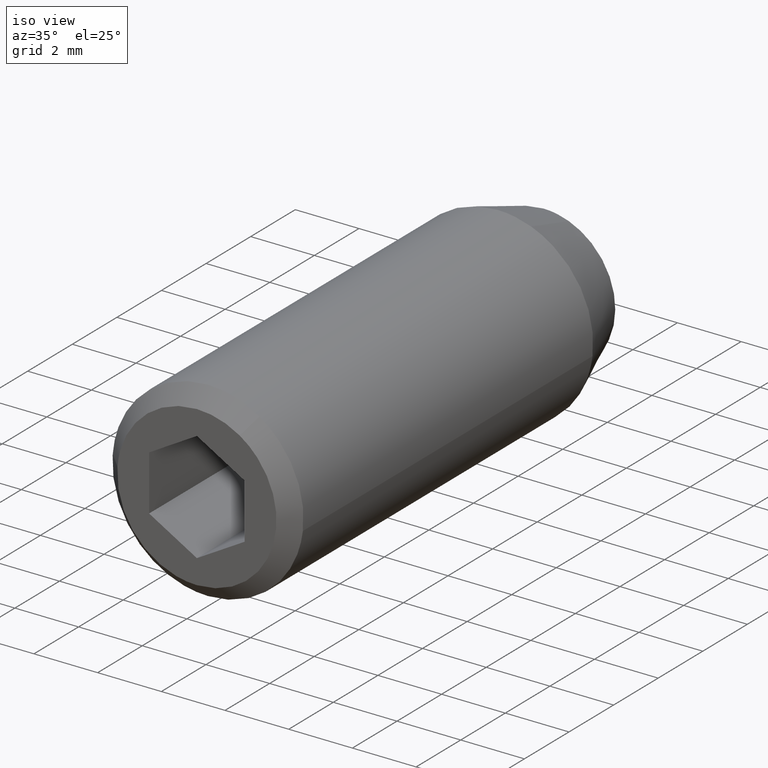
[diagram: clean part render]
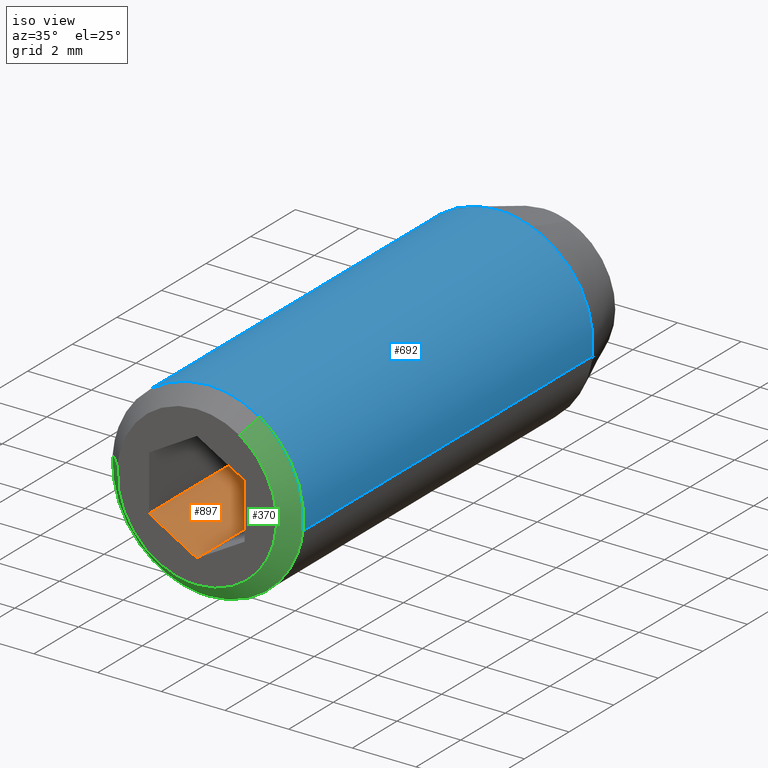
[diagram: same view with three faces highlighted in distinct colors, each labeled with its STEP entity id]
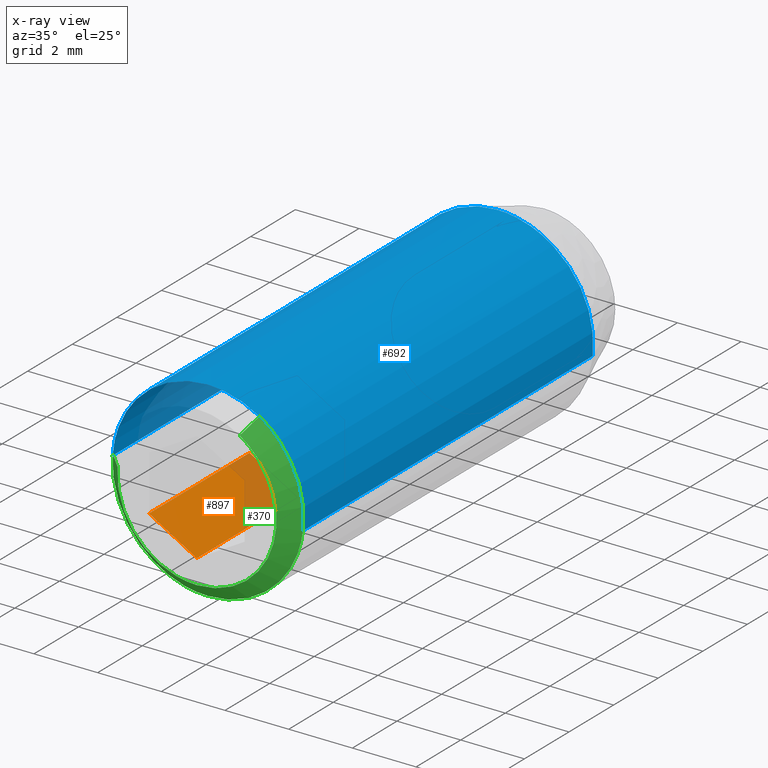
[diagram: x-ray of the same camera — body ghosted, the three highlighted faces saturated]
A machine part, iso view with three faces highlighted in distinct colors.
The next image is the same camera in x-ray (body ghosted, the three faces saturated) — at least one of them is partly hidden behind the body in this view.
Their STEP definitions:

[orange] entity #897 — the highlighted face is a freeform B-spline surface patch.
#739=CARTESIAN_POINT('',(-1.500000000000000,-11.050000000000001,-0.866025000000000));
#740=VERTEX_POINT('',#739);
#746=CARTESIAN_POINT('',(0.0,-11.050000000000001,-1.732051000000000));
#747=VERTEX_POINT('',#746);
#748=CARTESIAN_POINT('',(-1.500000000000000,-11.050000000000001,-0.866025000000000));
#749=CARTESIAN_POINT('',(0.0,-11.050000000000001,-1.732051000000000));
#750=QUASI_UNIFORM_CURVE('',1,(#748,#749),.UNSPECIFIED.,.F.,.U.);
#751=EDGE_CURVE('',#740,#747,#750,.T.);
#859=CARTESIAN_POINT('',(0.0,-15.550000000000001,-1.732051000000000));
#860=VERTEX_POINT('',#859);
#868=CARTESIAN_POINT('',(0.0,-11.050000000000001,-1.732051000000000));
#869=CARTESIAN_POINT('',(0.0,-15.550000000000001,-1.732051000000000));
#870=QUASI_UNIFORM_CURVE('',1,(#868,#869),.UNSPECIFIED.,.F.,.U.);
#871=EDGE_CURVE('',#747,#860,#870,.T.);
#876=CARTESIAN_POINT('',(0.074925011173640,-15.774775186414869,-1.775309005151099));
#877=CARTESIAN_POINT('',(-1.574925037995726,-15.774775186414869,-0.822766979363143));
#878=CARTESIAN_POINT('',(0.074925011173640,-10.825225215916490,-1.775309005151099));
#879=CARTESIAN_POINT('',(-1.574925037995726,-10.825225215916490,-0.822766979363143));
#880=B_SPLINE_SURFACE_WITH_KNOTS('',1,1,((#876,#878),(#877,#879)),.UNSPECIFIED.,.F.,.F.,.U.,(2,2),(2,2),(0.0,1.905083067909739),(0.0,4.949549970498381),.UNSPECIFIED.);
#881=CARTESIAN_POINT('',(-1.500000000000000,-15.550000000000001,-0.866025000000000));
#882=VERTEX_POINT('',#881);
#883=CARTESIAN_POINT('',(-1.500000000000000,-15.550000000000001,-0.866025000000000));
#884=CARTESIAN_POINT('',(0.0,-15.550000000000001,-1.732051000000000));
#885=QUASI_UNIFORM_CURVE('',1,(#883,#884),.UNSPECIFIED.,.F.,.U.);
#886=EDGE_CURVE('',#882,#860,#885,.T.);
#887=ORIENTED_EDGE('',*,*,#886,.T.);
#888=ORIENTED_EDGE('',*,*,#871,.F.);
#889=ORIENTED_EDGE('',*,*,#751,.F.);
#890=CARTESIAN_POINT('',(-1.500000000000000,-11.050000000000001,-0.866025000000000));
#891=CARTESIAN_POINT('',(-1.500000000000000,-15.550000000000001,-0.866025000000000));
#892=QUASI_UNIFORM_CURVE('',1,(#890,#891),.UNSPECIFIED.,.F.,.U.);
#893=EDGE_CURVE('',#740,#882,#892,.T.);
#894=ORIENTED_EDGE('',*,*,#893,.T.);
#895=EDGE_LOOP('',(#887,#888,#889,#894));
#896=FACE_OUTER_BOUND('',#895,.T.);
#897=ADVANCED_FACE('',(#896),#880,.F.);

[blue] entity #692 — the highlighted face is a freeform B-spline surface patch.
#256=CARTESIAN_POINT('',(2.979028827039997,-15.050000000000001,-0.354100617989129));
#257=VERTEX_POINT('',#256);
#258=CARTESIAN_POINT('',(1.613552380348581,-15.049999999999390,2.529120146587553));
#259=VERTEX_POINT('',#258);
#260=CARTESIAN_POINT('',(2.979028827039997,-15.050000000000002,-0.354100617989129));
#261=CARTESIAN_POINT('',(3.000000000000000,-15.049999999999997,-0.177671304938903));
#262=CARTESIAN_POINT('',(3.0,-15.050000000000001,-6.765950E-016));
#263=CARTESIAN_POINT('',(3.000000000000000,-15.050000000000006,1.644580968029252));
#264=CARTESIAN_POINT('',(1.613552380348581,-15.049999999999393,2.529120146587553));
#272=(BOUNDED_CURVE()B_SPLINE_CURVE(2,(#260,#261,#262,#263,#264),.UNSPECIFIED.,.F.,.U.)B_SPLINE_CURVE_WITH_KNOTS((3,2,3),(0.229562591855431,0.250000000000000,0.407950112626405),.UNSPECIFIED.)CURVE()GEOMETRIC_REPRESENTATION_ITEM()RATIONAL_B_SPLINE_CURVE((0.956026986138842,0.976056086977332,1.0,0.814949932403620,0.863729296954216))REPRESENTATION_ITEM(''));
#273=EDGE_CURVE('',#257,#259,#272,.T.);
#316=CARTESIAN_POINT('',(-2.990751486467367,-15.050000547912260,0.235376844060400));
#317=VERTEX_POINT('',#316);
#323=CARTESIAN_POINT('',(-2.994404631648551,-15.049999999999990,0.183141753695629));
#324=VERTEX_POINT('',#323);
#325=CARTESIAN_POINT('',(-2.990751486467367,-15.050000547912251,0.235376844060400));
#326=CARTESIAN_POINT('',(-2.992806284083604,-15.049999999999999,0.209275058976257));
#327=CARTESIAN_POINT('',(-2.994404631648550,-15.049999999999997,0.183141753695629));
#335=(BOUNDED_CURVE()B_SPLINE_CURVE(2,(#325,#326,#327),.UNSPECIFIED.,.F.,.U.)B_SPLINE_CURVE_WITH_KNOTS((3,3),(0.736331346502731,0.739333184949944),.UNSPECIFIED.)CURVE()GEOMETRIC_REPRESENTATION_ITEM()RATIONAL_B_SPLINE_CURVE((0.969723451898952,0.972855757106757,0.976072518979253))REPRESENTATION_ITEM(''));
#336=EDGE_CURVE('',#317,#324,#335,.T.);
#389=CARTESIAN_POINT('',(0.0,-15.050000000000001,2.999999999999999));
#390=VERTEX_POINT('',#389);
#391=CARTESIAN_POINT('',(1.613552380348582,-15.049999999999390,2.529120146587553));
#392=CARTESIAN_POINT('',(0.875484166150211,-15.050000000000001,3.000000000000000));
#393=CARTESIAN_POINT('',(0.0,-15.050000000000001,2.999999999999999));
#401=(BOUNDED_CURVE()B_SPLINE_CURVE(2,(#391,#392,#393),.UNSPECIFIED.,.F.,.U.)B_SPLINE_CURVE_WITH_KNOTS((3,3),(0.407950112626405,0.500000000000000),.UNSPECIFIED.)CURVE()GEOMETRIC_REPRESENTATION_ITEM()RATIONAL_B_SPLINE_CURVE((0.863729296954217,0.892156848782928,1.0))REPRESENTATION_ITEM(''));
#402=EDGE_CURVE('',#259,#390,#401,.T.);
#404=CARTESIAN_POINT('',(0.0,-15.050000000000001,2.999999999999999));
#405=CARTESIAN_POINT('',(-2.773172219317691,-15.049999999999995,2.999999999999999));
#406=CARTESIAN_POINT('',(-2.990751486467367,-15.050000547912258,0.235376844060400));
#414=(BOUNDED_CURVE()B_SPLINE_CURVE(2,(#404,#405,#406),.UNSPECIFIED.,.F.,.U.)B_SPLINE_CURVE_WITH_KNOTS((3,3),(0.500000000000000,0.736331346502732),.UNSPECIFIED.)CURVE()GEOMETRIC_REPRESENTATION_ITEM()RATIONAL_B_SPLINE_CURVE((1.0,0.723120604865190,0.969723451898952))REPRESENTATION_ITEM(''));
#415=EDGE_CURVE('',#390,#317,#414,.T.);
#468=CARTESIAN_POINT('',(1.054853923181420,-2.060608000001297,2.808430736327957));
#469=VERTEX_POINT('',#468);
#470=CARTESIAN_POINT('',(0.0,-2.060608000000000,2.999999999999999));
#471=VERTEX_POINT('',#470);
#472=CARTESIAN_POINT('',(1.054853923181420,-2.060608000001297,2.808430736327958));
#473=CARTESIAN_POINT('',(0.544822158207495,-2.060608000000000,2.999999999999999));
#474=CARTESIAN_POINT('',(0.0,-2.060608000000000,2.999999999999999));
#482=(BOUNDED_CURVE()B_SPLINE_CURVE(2,(#472,#473,#474),.UNSPECIFIED.,.F.,.U.)B_SPLINE_CURVE_WITH_KNOTS((3,3),(0.440284170898174,0.500000000000000),.UNSPECIFIED.)CURVE()GEOMETRIC_REPRESENTATION_ITEM()RATIONAL_B_SPLINE_CURVE((0.893499554634866,0.930038554401009,1.0))REPRESENTATION_ITEM(''));
#483=EDGE_CURVE('',#469,#471,#482,.T.);
#522=CARTESIAN_POINT('',(-2.994404511037095,-2.060607997349454,0.183143709914920));
#523=VERTEX_POINT('',#522);
#529=CARTESIAN_POINT('',(0.0,-2.060608000000000,2.999999999999999));
#530=CARTESIAN_POINT('',(-2.822120002894594,-2.060607999999999,2.999999999999998));
#531=CARTESIAN_POINT('',(-2.994404511037095,-2.060607997349454,0.183143709914921));
#539=(BOUNDED_CURVE()B_SPLINE_CURVE(2,(#529,#530,#531),.UNSPECIFIED.,.F.,.U.)B_SPLINE_CURVE_WITH_KNOTS((3,3),(0.500000000000000,0.739333072223147),.UNSPECIFIED.)CURVE()GEOMETRIC_REPRESENTATION_ITEM()RATIONAL_B_SPLINE_CURVE((1.0,0.719603864432200,0.976072277383916))REPRESENTATION_ITEM(''));
#540=EDGE_CURVE('',#471,#523,#539,.T.);
#567=CARTESIAN_POINT('',(2.979028823977284,-2.060608000000000,-0.354100643755718));
#568=VERTEX_POINT('',#567);
#569=CARTESIAN_POINT('',(2.979028823977285,-2.060608000000001,-0.354100643755718));
#570=CARTESIAN_POINT('',(3.000000000000000,-2.060608000000000,-0.177671317958396));
#571=CARTESIAN_POINT('',(3.0,-2.060608000000000,-6.765950E-016));
#572=CARTESIAN_POINT('',(3.0,-2.060608000000000,2.077828787072924));
#573=CARTESIAN_POINT('',(1.054853923181420,-2.060608000001297,2.808430736327958));
#581=(BOUNDED_CURVE()B_SPLINE_CURVE(2,(#569,#570,#571,#572,#573),.UNSPECIFIED.,.F.,.U.)B_SPLINE_CURVE_WITH_KNOTS((3,2,3),(0.229562590393667,0.250000000000000,0.440284170898174),.UNSPECIFIED.)CURVE()GEOMETRIC_REPRESENTATION_ITEM()RATIONAL_B_SPLINE_CURVE((0.956026983273721,0.976056085264769,1.0,0.777068226785539,0.893499554634866))REPRESENTATION_ITEM(''));
#582=EDGE_CURVE('',#568,#469,#581,.T.);
#651=CARTESIAN_POINT('',(2.979028579091000,-1.735873199999999,-0.354102703970276));
#652=CARTESIAN_POINT('',(2.989162846345817,-1.735873199999999,-0.268844185913934));
#653=CARTESIAN_POINT('',(2.994404395265600,-1.735873199999999,-0.183145618604572));
#654=CARTESIAN_POINT('',(3.177550013870171,-1.735873200000000,2.811258776661028));
#655=CARTESIAN_POINT('',(0.183145618604571,-1.735873199999999,2.994404395265599));
#656=CARTESIAN_POINT('',(-2.811258776661029,-1.735873200000000,3.177550013870171));
#657=CARTESIAN_POINT('',(-2.994404395265600,-1.735873199999999,0.183145618604570));
#658=CARTESIAN_POINT('',(2.979028579091000,-15.382853169999997,-0.354102703970276));
#659=CARTESIAN_POINT('',(2.989162846345817,-15.382853170000001,-0.268844185913934));
#660=CARTESIAN_POINT('',(2.994404395265600,-15.382853170000001,-0.183145618604572));
#661=CARTESIAN_POINT('',(3.177550013870171,-15.382853170000001,2.811258776661028));
#662=CARTESIAN_POINT('',(0.183145618604571,-15.382853170000001,2.994404395265599));
#663=CARTESIAN_POINT('',(-2.811258776661029,-15.382853170000001,3.177550013870171));
#664=CARTESIAN_POINT('',(-2.994404395265600,-15.382853170000001,0.183145618604570));
#672=(BOUNDED_SURFACE()B_SPLINE_SURFACE(2,1,((#651,#658),(#652,#659),(#653,#660),(#654,#661),(#655,#662),(#656,#663),(#657,#664)),.UNSPECIFIED.,.F.,.F.,.U.)B_SPLINE_SURFACE_WITH_KNOTS((3,2,2,3),(2,2),(0.0,0.198822509939086,5.169385258416225,10.139948006893370),(0.0,13.646979970000000),.UNSPECIFIED.)GEOMETRIC_REPRESENTATION_ITEM()RATIONAL_B_SPLINE_SURFACE(((0.977505800795127,0.977505800795127),(0.988284271247462,0.988284271247462),(1.0,1.0),(0.707106781186548,0.707106781186548),(1.0,1.0),(0.707106781186548,0.707106781186548),(1.0,1.0)))REPRESENTATION_ITEM('')SURFACE());
#673=ORIENTED_EDGE('',*,*,#273,.F.);
#674=CARTESIAN_POINT('',(2.979028823977284,-2.060608000000000,-0.354100643755718));
#675=CARTESIAN_POINT('',(2.979028827039997,-15.050000000000001,-0.354100617989129));
#676=QUASI_UNIFORM_CURVE('',1,(#674,#675),.UNSPECIFIED.,.F.,.U.);
#677=EDGE_CURVE('',#568,#257,#676,.T.);
#678=ORIENTED_EDGE('',*,*,#677,.F.);
#679=ORIENTED_EDGE('',*,*,#582,.T.);
#680=ORIENTED_EDGE('',*,*,#483,.T.);
#681=ORIENTED_EDGE('',*,*,#540,.T.);
#682=CARTESIAN_POINT('',(-2.994404511037095,-2.060607997349454,0.183143709914920));
#683=CARTESIAN_POINT('',(-2.994404631648551,-15.049999999999990,0.183141753695629));
#684=QUASI_UNIFORM_CURVE('',1,(#682,#683),.UNSPECIFIED.,.F.,.U.);
#685=EDGE_CURVE('',#523,#324,#684,.T.);
#686=ORIENTED_EDGE('',*,*,#685,.T.);
#687=ORIENTED_EDGE('',*,*,#336,.F.);
#688=ORIENTED_EDGE('',*,*,#415,.F.);
#689=ORIENTED_EDGE('',*,*,#402,.F.);
#690=EDGE_LOOP('',(#673,#678,#679,#680,#681,#686,#687,#688,#689));
#691=FACE_OUTER_BOUND('',#690,.T.);
#692=ADVANCED_FACE('',(#691),#672,.T.);

[green] entity #370 — the highlighted face is a freeform B-spline surface patch.
#234=CARTESIAN_POINT('',(1.337903848697430,-15.562499999999998,2.097062121550191));
#235=CARTESIAN_POINT('',(2.597013232677687,-15.562499999999996,1.293763414541469));
#236=CARTESIAN_POINT('',(2.479831867661154,-15.562500000000000,-0.195167000623016));
#237=CARTESIAN_POINT('',(2.284664867038139,-15.562500000000004,-2.674998868284170));
#238=CARTESIAN_POINT('',(-0.195167000623016,-15.562500000000000,-2.479831867661154));
#239=CARTESIAN_POINT('',(-2.674998868284169,-15.562500000000004,-2.284664867038139));
#240=CARTESIAN_POINT('',(-2.479831867661154,-15.562500000000000,0.195167000623015));
#241=CARTESIAN_POINT('',(1.620443593629642,-15.037187499999991,2.539921597219273));
#242=CARTESIAN_POINT('',(3.145452836211760,-15.037187499999998,1.566981542662603));
#243=CARTESIAN_POINT('',(3.003525004537841,-15.037187500000000,-0.236382544347550));
#244=CARTESIAN_POINT('',(2.767142460190291,-15.037187500000002,-3.239907548885392));
#245=CARTESIAN_POINT('',(-0.236382544347550,-15.037187500000000,-3.003525004537841));
#246=CARTESIAN_POINT('',(-3.239907548885390,-15.037187500000002,-2.767142460190291));
#247=CARTESIAN_POINT('',(-3.003525004537841,-15.037187500000000,0.236382544347549));
#255=(BOUNDED_SURFACE()B_SPLINE_SURFACE(2,1,((#234,#241),(#235,#242),(#236,#243),(#237,#244),(#238,#245),(#239,#246),(#240,#247)),.UNSPECIFIED.,.F.,.F.,.U.)B_SPLINE_SURFACE_WITH_KNOTS((3,2,2,3),(2,2),(0.0,3.394418011613159,8.386209205161924,13.378000398710689),(0.0,1.0),.UNSPECIFIED.)GEOMETRIC_REPRESENTATION_ITEM()RATIONAL_B_SPLINE_SURFACE(((0.872532871172386,0.872532871172386),(0.800832611206852,0.800832611206852),(1.0,1.0),(0.707106781186548,0.707106781186548),(1.0,1.0),(0.707106781186548,0.707106781186548),(1.0,1.0)))REPRESENTATION_ITEM('')SURFACE());
#256=CARTESIAN_POINT('',(2.979028827039997,-15.050000000000001,-0.354100617989129));
#257=VERTEX_POINT('',#256);
#258=CARTESIAN_POINT('',(1.613552380348581,-15.049999999999390,2.529120146587553));
#259=VERTEX_POINT('',#258);
#260=CARTESIAN_POINT('',(2.979028827039997,-15.050000000000002,-0.354100617989129));
#261=CARTESIAN_POINT('',(3.000000000000000,-15.049999999999997,-0.177671304938903));
#262=CARTESIAN_POINT('',(3.0,-15.050000000000001,-6.765950E-016));
#263=CARTESIAN_POINT('',(3.000000000000000,-15.050000000000006,1.644580968029252));
#264=CARTESIAN_POINT('',(1.613552380348581,-15.049999999999393,2.529120146587553));
#272=(BOUNDED_CURVE()B_SPLINE_CURVE(2,(#260,#261,#262,#263,#264),.UNSPECIFIED.,.F.,.U.)B_SPLINE_CURVE_WITH_KNOTS((3,2,3),(0.229562591855431,0.250000000000000,0.407950112626405),.UNSPECIFIED.)CURVE()GEOMETRIC_REPRESENTATION_ITEM()RATIONAL_B_SPLINE_CURVE((0.956026986138842,0.976056086977332,1.0,0.814949932403620,0.863729296954216))REPRESENTATION_ITEM(''));
#273=EDGE_CURVE('',#257,#259,#272,.T.);
#274=ORIENTED_EDGE('',*,*,#273,.T.);
#275=CARTESIAN_POINT('',(1.344626983623041,-15.549999999999541,2.107600122156740));
#276=VERTEX_POINT('',#275);
#277=CARTESIAN_POINT('',(1.344626983623041,-15.549999999999541,2.107600122156740));
#278=CARTESIAN_POINT('',(1.613552380348581,-15.049999999999390,2.529120146587553));
#279=QUASI_UNIFORM_CURVE('',1,(#277,#278),.UNSPECIFIED.,.F.,.U.);
#280=EDGE_CURVE('',#276,#259,#279,.T.);
#281=ORIENTED_EDGE('',*,*,#280,.F.);
#282=CARTESIAN_POINT('',(0.0,-15.550000000000001,-2.500000000000001));
#283=VERTEX_POINT('',#282);
#284=CARTESIAN_POINT('',(0.0,-15.550000000000001,-2.500000000000001));
#285=CARTESIAN_POINT('',(2.500000000000000,-15.549999999999994,-2.500000000000001));
#286=CARTESIAN_POINT('',(2.500000000000000,-15.550000000000001,-6.765950E-016));
#287=CARTESIAN_POINT('',(2.500000000000000,-15.549999999999994,1.370484140025540));
#288=CARTESIAN_POINT('',(1.344626983623042,-15.549999999999534,2.107600122156739));
#296=(BOUNDED_CURVE()B_SPLINE_CURVE(2,(#284,#285,#286,#287,#288),.UNSPECIFIED.,.F.,.U.)B_SPLINE_CURVE_WITH_KNOTS((3,2,3),(0.0,0.250000000000000,0.407950112626514),.UNSPECIFIED.)CURVE()GEOMETRIC_REPRESENTATION_ITEM()RATIONAL_B_SPLINE_CURVE((1.0,0.707106781186548,1.0,0.814949932403492,0.863729296954284))REPRESENTATION_ITEM(''));
#297=EDGE_CURVE('',#283,#276,#296,.T.);
#298=ORIENTED_EDGE('',*,*,#297,.F.);
#299=CARTESIAN_POINT('',(-2.492293334334823,-15.549999999994959,0.196147739358426));
#300=VERTEX_POINT('',#299);
#301=CARTESIAN_POINT('',(-2.492293334334823,-15.549999999994961,0.196147739358426));
#302=CARTESIAN_POINT('',(-2.500000000000000,-15.549999999999995,0.098225267557770));
#303=CARTESIAN_POINT('',(-2.500000000000000,-15.550000000000001,-6.765950E-016));
#304=CARTESIAN_POINT('',(-2.500000000000000,-15.549999999999994,-2.500000000000001));
#305=CARTESIAN_POINT('',(0.0,-15.550000000000001,-2.500000000000001));
#313=(BOUNDED_CURVE()B_SPLINE_CURVE(2,(#301,#302,#303,#304,#305),.UNSPECIFIED.,.F.,.U.)B_SPLINE_CURVE_WITH_KNOTS((3,2,3),(0.736331300627482,0.750000000000000,1.0),.UNSPECIFIED.)CURVE()GEOMETRIC_REPRESENTATION_ITEM()RATIONAL_B_SPLINE_CURVE((0.969723356160786,0.983986122575159,1.0,0.707106781186548,1.0))REPRESENTATION_ITEM(''));
#314=EDGE_CURVE('',#300,#283,#313,.T.);
#315=ORIENTED_EDGE('',*,*,#314,.F.);
#316=CARTESIAN_POINT('',(-2.990751486467367,-15.050000547912260,0.235376844060400));
#317=VERTEX_POINT('',#316);
#318=CARTESIAN_POINT('',(-2.492293334334823,-15.549999999994959,0.196147739358426));
#319=CARTESIAN_POINT('',(-2.990751486467367,-15.050000547912260,0.235376844060400));
#320=QUASI_UNIFORM_CURVE('',1,(#318,#319),.UNSPECIFIED.,.F.,.U.);
#321=EDGE_CURVE('',#300,#317,#320,.T.);
#322=ORIENTED_EDGE('',*,*,#321,.T.);
#323=CARTESIAN_POINT('',(-2.994404631648551,-15.049999999999990,0.183141753695629));
#324=VERTEX_POINT('',#323);
#325=CARTESIAN_POINT('',(-2.990751486467367,-15.050000547912251,0.235376844060400));
#326=CARTESIAN_POINT('',(-2.992806284083604,-15.049999999999999,0.209275058976257));
#327=CARTESIAN_POINT('',(-2.994404631648550,-15.049999999999997,0.183141753695629));
#335=(BOUNDED_CURVE()B_SPLINE_CURVE(2,(#325,#326,#327),.UNSPECIFIED.,.F.,.U.)B_SPLINE_CURVE_WITH_KNOTS((3,3),(0.736331346502731,0.739333184949944),.UNSPECIFIED.)CURVE()GEOMETRIC_REPRESENTATION_ITEM()RATIONAL_B_SPLINE_CURVE((0.969723451898952,0.972855757106757,0.976072518979253))REPRESENTATION_ITEM(''));
#336=EDGE_CURVE('',#317,#324,#335,.T.);
#337=ORIENTED_EDGE('',*,*,#336,.T.);
#338=CARTESIAN_POINT('',(0.0,-15.050000000000001,-3.000000000000001));
#339=VERTEX_POINT('',#338);
#340=CARTESIAN_POINT('',(-2.994404631648550,-15.049999999999997,0.183141753695629));
#341=CARTESIAN_POINT('',(-3.0,-15.050000000000001,0.091656352023072));
#342=CARTESIAN_POINT('',(-3.0,-15.050000000000001,-6.765950E-016));
#343=CARTESIAN_POINT('',(-3.0,-15.049999999999999,-3.0));
#344=CARTESIAN_POINT('',(0.0,-15.050000000000001,-3.000000000000001));
#352=(BOUNDED_CURVE()B_SPLINE_CURVE(2,(#340,#341,#342,#343,#344),.UNSPECIFIED.,.F.,.U.)B_SPLINE_CURVE_WITH_KNOTS((3,2,3),(0.739333184949944,0.750000000000000,1.0),.UNSPECIFIED.)CURVE()GEOMETRIC_REPRESENTATION_ITEM()RATIONAL_B_SPLINE_CURVE((0.976072518979253,0.987503048822005,1.0,0.707106781186548,1.0))REPRESENTATION_ITEM(''));
#353=EDGE_CURVE('',#324,#339,#352,.T.);
#354=ORIENTED_EDGE('',*,*,#353,.T.);
#355=CARTESIAN_POINT('',(0.0,-15.050000000000001,-3.000000000000001));
#356=CARTESIAN_POINT('',(2.664525456746725,-15.050000000000004,-3.000000000000001));
#357=CARTESIAN_POINT('',(2.979028827039997,-15.050000000000002,-0.354100617989129));
#365=(BOUNDED_CURVE()B_SPLINE_CURVE(2,(#355,#356,#357),.UNSPECIFIED.,.F.,.U.)B_SPLINE_CURVE_WITH_KNOTS((3,3),(0.0,0.229562591855431),.UNSPECIFIED.)CURVE()GEOMETRIC_REPRESENTATION_ITEM()RATIONAL_B_SPLINE_CURVE((1.0,0.731050694209216,0.956026986138842))REPRESENTATION_ITEM(''));
#366=EDGE_CURVE('',#339,#257,#365,.T.);
#367=ORIENTED_EDGE('',*,*,#366,.T.);
#368=EDGE_LOOP('',(#274,#281,#298,#315,#322,#337,#354,#367));
#369=FACE_OUTER_BOUND('',#368,.T.);
#370=ADVANCED_FACE('',(#369),#255,.T.);